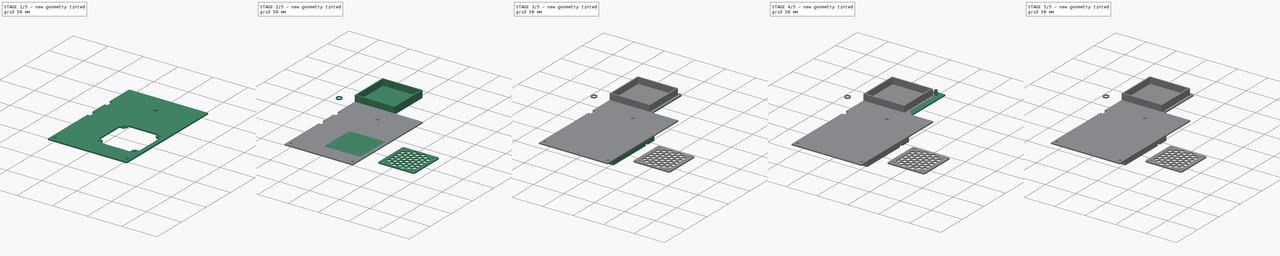
[diagram: build sequence overview — one tinted view per stage of 5, left to right]
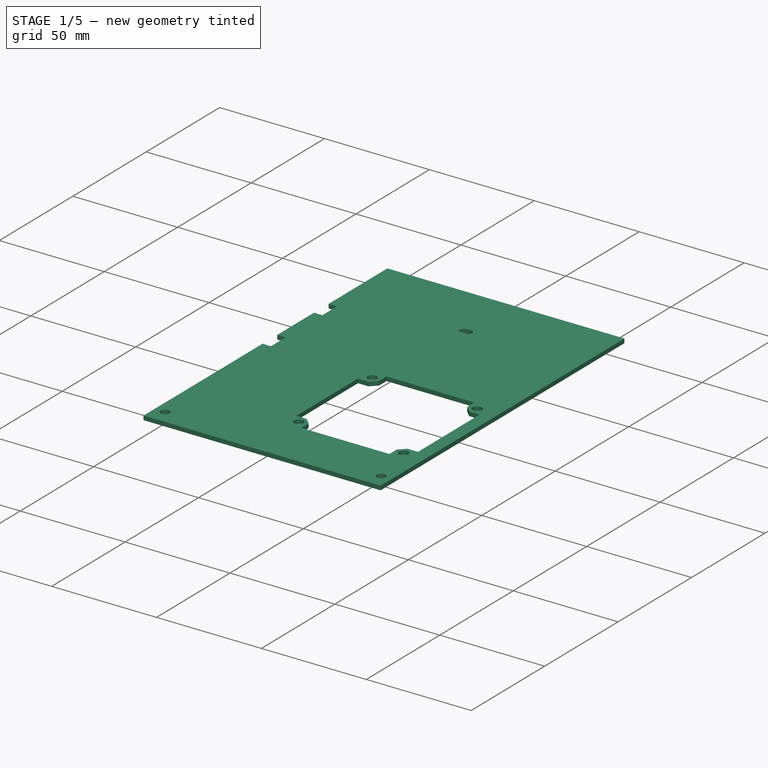
[diagram: stage 1 of 5 — iso view after this stage's code; geometry added in this stage tinted green]
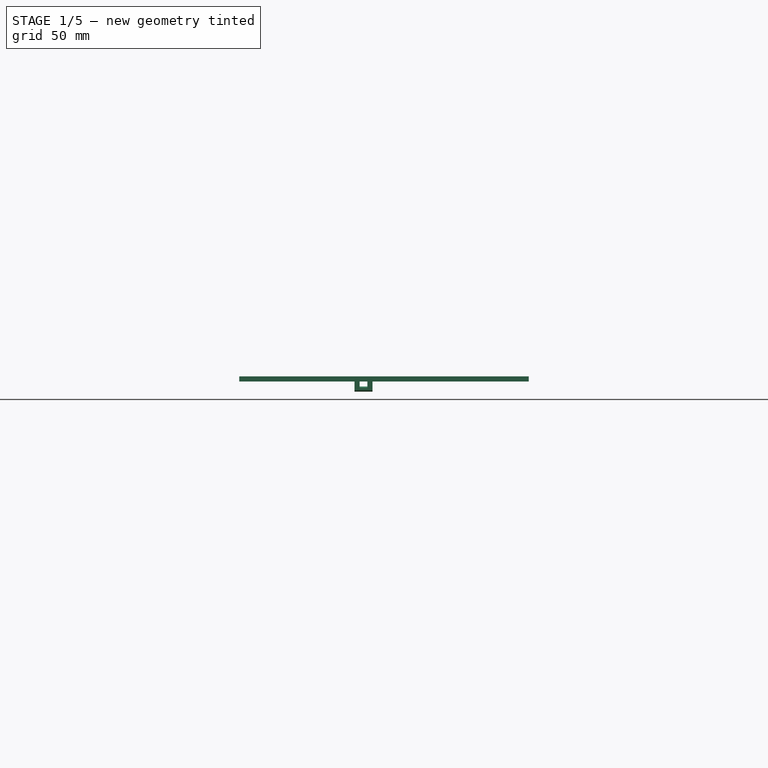
[diagram: stage 1 of 5 — front view after this stage's code; geometry added in this stage tinted green]
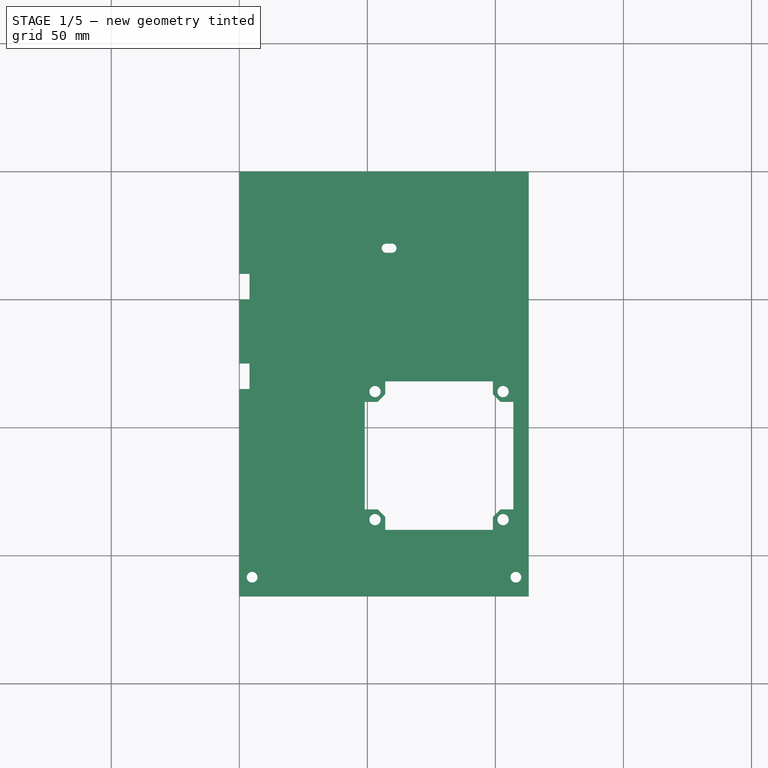
[diagram: stage 1 of 5 — top view after this stage's code; geometry added in this stage tinted green]
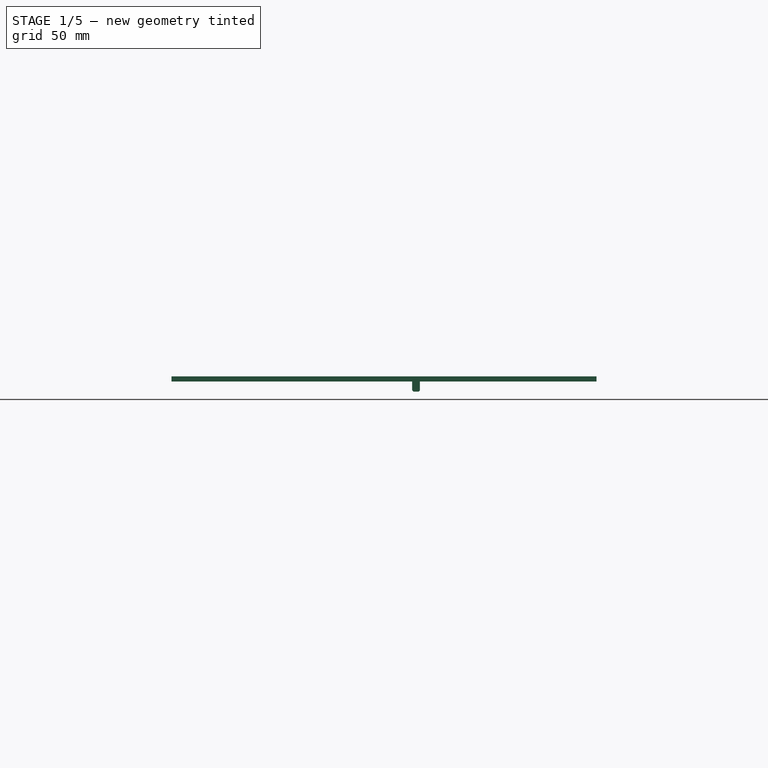
[diagram: stage 1 of 5 — right view after this stage's code; geometry added in this stage tinted green]
FCSTD DOCUMENT  (FreeCAD 0.18R14555 (Git shallow))
Label: toolbox-lit-60
License: All rights reserved
LicenseURL: http://en.wikipedia.org/wiki/All_rights_reserved
objects: Part::Feature×80, Part::Cylinder×37, Part::Box×37, Part::Cut×31, Part::MultiFuse×28, Part::Chamfer×8, Part::MultiCommon×4, Part::Fillet×2, Sketcher::SketchObject×1, PartDesign::Pad×1, PartDesign::Body×1
note: 231 computed .brp shape members not serialized (recipe doc carries the construction recipe); baked Part::Feature solids carry a one-line shape summary decoded from their .brp

FEATURE [Part::Box] Box029  label="Cube029"
  AttacherType = Attacher::AttachEngine3D
  Height = 6
  Length = 66
  Placement = pos=(45,-144,-4) rot=(0,0,1;0rad)
  Width = 66
FEATURE [Part::Feature] Fillet001001  label="lit-filter"
  shape: bbox 60 x 60 x 2 mm, 270 faces (baked)
FEATURE [Part::Box] Box030  label="Cube030"
  AttacherType = Attacher::AttachEngine3D
  Height = 4
  Length = 62
  Placement = pos=(47,-142,-2) rot=(0,0,1;0rad)
  Width = 62
FEATURE [Part::Box] Box031  label="Cube031"
  AttacherType = Attacher::AttachEngine3D
  Height = 6
  Length = 66
  Placement = pos=(45,-144,-4) rot=(0,0,1;0rad)
  Width = 66
FEATURE [Part::Cut] Cut016011
  Base = -> Fusion001002018005010002003003002006001
  Tool = -> Box031
FEATURE [Part::Cut] Cut016012
  Base = -> Box029
  Tool = -> Box030
FEATURE [Part::Cylinder] Cylinder035
  Angle = 360
  AttacherType = Attacher::AttachEngine3D
  Height = 10
  Placement = pos=(142,-136,0) rot=(0,0,1;0rad)
  Radius = 2.2
FEATURE [Part::Cylinder] Cylinder036
  Angle = 360
  AttacherType = Attacher::AttachEngine3D
  Height = 10
  Placement = pos=(192,-136,0) rot=(0,0,1;0rad)
  Radius = 2.2
FEATURE [Part::Cylinder] Cylinder037
  Angle = 360
  AttacherType = Attacher::AttachEngine3D
  Height = 10
  Placement = pos=(142,-86,0) rot=(0,0,1;0rad)
  Radius = 2.2
FEATURE [Part::Cylinder] Cylinder038
  Angle = 360
  AttacherType = Attacher::AttachEngine3D
  Height = 10
  Placement = pos=(192,-86,0) rot=(0,0,1;0rad)
  Radius = 2.2
FEATURE [Part::MultiFuse] Fusion001002018005010002003003002006001002
  Placement = pos=(-89,0,-8) rot=(0,0,1;0rad)
  Shapes = -> [Cylinder038,Cylinder037,Cylinder036,Cylinder035]
FEATURE [Part::Cut] Cut016013
  Base = -> Cut016012
  Tool = -> Fusion001002018005010002003003002006001002
FEATURE [Part::Chamfer] Chamfer001004003002
  Base = -> Cut016013
  Edges = 4 edges r=1: [Edge17,Edge18,Edge19,Edge20]
FEATURE [Part::Box] Box032  label="Cube032"
  AttacherType = Attacher::AttachEngine3D
  Height = 10
  Length = 42
  Placement = pos=(57,-140,-4) rot=(0,0,1;0rad)
  Width = 58
FEATURE [Part::Box] Box033  label="Cube033"
  AttacherType = Attacher::AttachEngine3D
  Height = 10
  Length = 58
  Placement = pos=(49,-132,-4) rot=(0,0,1;0rad)
  Width = 42
FEATURE [Part::MultiFuse] Fusion001002018005010002003003002006001003
  Shapes = -> [Box033,Box032]
FEATURE [Part::Chamfer] Chamfer001004003003
  Base = -> Fusion001002018005010002003003002006001003
  Edges = 4 edges r=3: [Edge6,Edge11,Edge41,Edge42]
FEATURE [Part::Cut] Cut016014
  Base = -> Chamfer001004003002
  Tool = -> Chamfer001004003003
FEATURE [Part::Feature] Cut016011001  label="Cut016015"
  shape: bbox 113 x 166 x 6 mm, 36 faces (baked)
FEATURE [Part::Box] Box034  label="Cube034"
  AttacherType = Attacher::AttachEngine3D
  Height = 10
  Length = 10
  Placement = pos=(34,-98,-10) rot=(0,0,1;0rad)
  Width = 10
FEATURE [Part::Box] Box035  label="Cube035"
  AttacherType = Attacher::AttachEngine3D
  Height = 10
  Length = 10
  Placement = pos=(34,-98,-10) rot=(0,0,1;0rad)
  Width = 10
FEATURE [Part::Cut] Cut016011002
  Base = -> Cut016011
  Tool = -> Box035
FEATURE [Part::MultiCommon] Common003
  Placement = pos=(-45,-112,0) rot=(0,0,1;1.5708rad)
  Shapes = -> [Box034,Cut016011001]
FEATURE [Part::Box] Box036  label="Cube036"
  AttacherType = Attacher::AttachEngine3D
  Height = 10
  Length = 10
  Placement = pos=(57,-82,-10) rot=(0,0,1;0rad)
  Width = 10
FEATURE [Part::Cut] Cut016011003
  Base = -> Cut016014
  Placement = pos=(0,0,4) rot=(0,0,1;0rad)
  Tool = -> Box036
FEATURE [Part::Box] Box037  label="Cube037"
  AttacherType = Attacher::AttachEngine3D
  Height = 4
  Length = 66
  Placement = pos=(45,-144,2) rot=(0,0,1;0rad)
  Width = 66
FEATURE [Part::Cut] Cut016011004
  Base = -> Cut016011003
  Tool = -> Box037
FEATURE [Part::Box] Box038  label="Cube038"
  AttacherType = Attacher::AttachEngine3D
  Height = 2
  Length = 10
  Placement = pos=(57,-82,0) rot=(0,0,1;0rad)
  Width = 4
FEATURE [Part::Cylinder] Cylinder039
  Angle = 360
  AttacherType = Attacher::AttachEngine3D
  Height = 2
  Placement = pos=(103,-136,0) rot=(0,0,1;0rad)
  Radius = 2.2
FEATURE [Part::Cylinder] Cylinder040
  Angle = 360
  AttacherType = Attacher::AttachEngine3D
  Height = 2
  Placement = pos=(103,-136,0) rot=(0,0,1;0rad)
  Radius = 3.2
FEATURE [Part::Cut] Cut016011006
  Base = -> Cylinder040
  Tool = -> Cylinder039
FEATURE [Part::Feature] Cut016011006001  label="Cut016011007"
  Placement = pos=(-50,0,0) rot=(0,0,1;0rad)
  shape: bbox 6.4 x 6.4 x 2 mm, 4 faces (baked)
FEATURE [Part::Feature] Cut016011006002  label="Cut016011008"
  Placement = pos=(0,50,0) rot=(0,0,1;0rad)
  shape: bbox 6.4 x 6.4 x 2 mm, 4 faces (baked)
FEATURE [Part::Feature] Cut016011006003  label="Cut016011009"
  Placement = pos=(-50,50,0) rot=(0,0,1;0rad)
  shape: bbox 6.4 x 6.4 x 2 mm, 4 faces (baked)
FEATURE [Part::MultiFuse] Fusion001002018005010002003003002006001004
  Shapes = -> [Cut016011006003,Cut016011006002,Cut016011006001,Cut016011006,Box038,Cut016011004,Common003,Cut016011002]
FEATURE [Part::Feature] Cut016011005001  label="Cut016011010"
  shape: bbox 60 x 60 x 1 mm, 266 faces (baked)
FEATURE [Part::Feature] Fusion001002018005010002003003002006001004001  label="Fusion001002018005010002003003002006001005"
  shape: bbox 113 x 166 x 6 mm, 52 faces (baked)
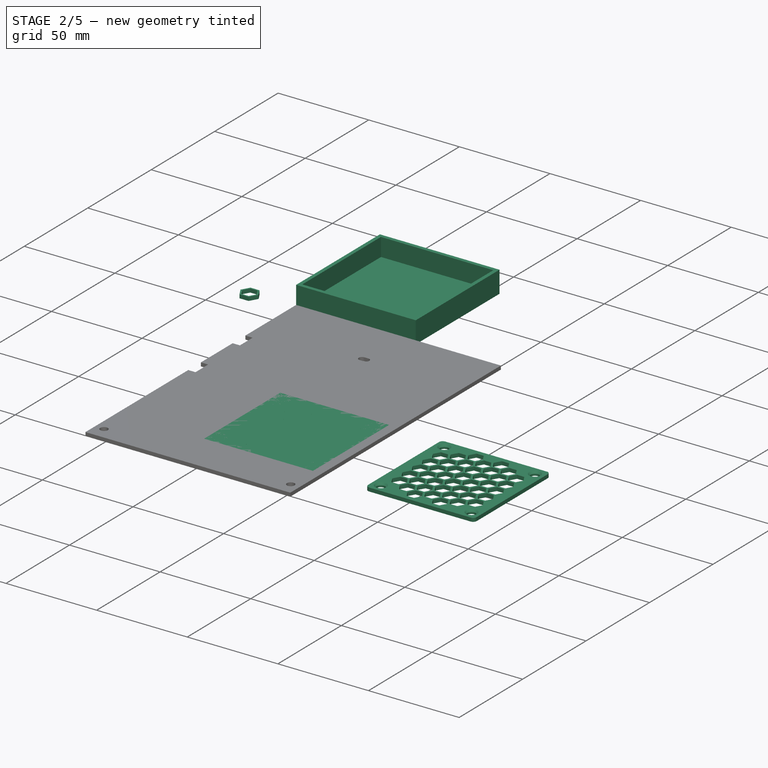
[diagram: stage 2 of 5 — iso view after this stage's code; geometry added in this stage tinted green]
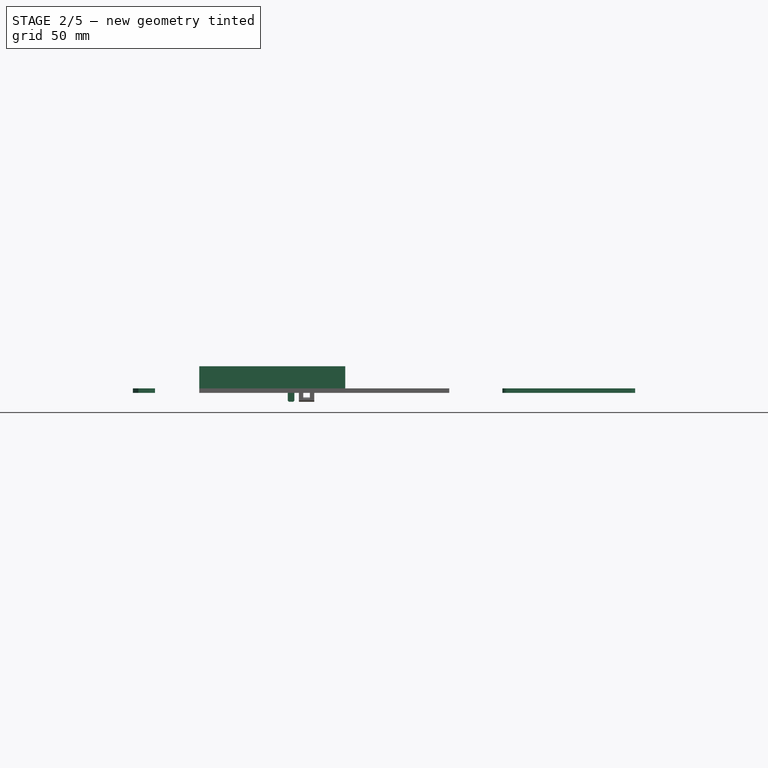
[diagram: stage 2 of 5 — front view after this stage's code; geometry added in this stage tinted green]
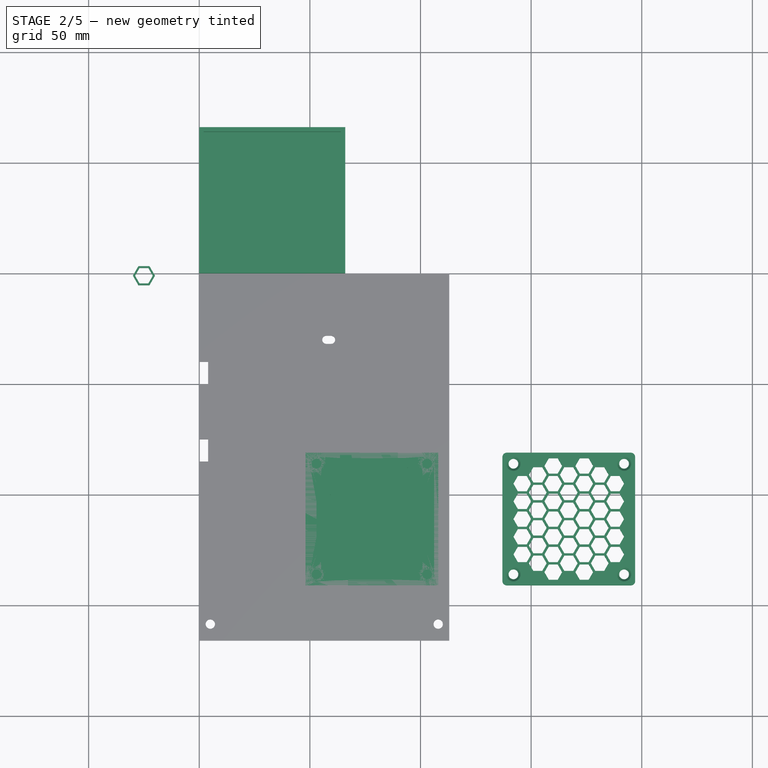
[diagram: stage 2 of 5 — top view after this stage's code; geometry added in this stage tinted green]
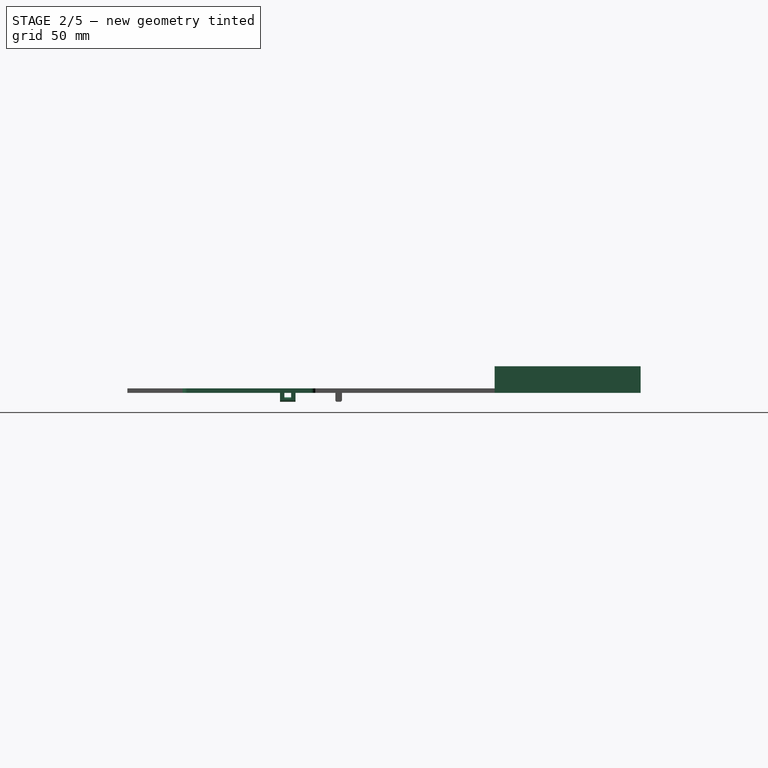
[diagram: stage 2 of 5 — right view after this stage's code; geometry added in this stage tinted green]
FEATURE [Part::Feature] Fusion001002018005010002003001  label="Fusion001002018005010002004"
  shape: bbox 113 x 166 x 2 mm, 16 faces (baked)
FEATURE [Part::Box] Box022  label="Cube022"
  AttacherType = Attacher::AttachEngine3D
  Height = 2
  Length = 60
  Placement = pos=(48,-141,0) rot=(0,0,1;0rad)
  Width = 60
FEATURE [Part::Box] Box023  label="Cube023"
  AttacherType = Attacher::AttachEngine3D
  Height = 12
  Length = 66
  Width = 66
FEATURE [Part::Box] Box024  label="Cube024"
  AttacherType = Attacher::AttachEngine3D
  Height = 10
  Length = 62
  Placement = pos=(2,2,2) rot=(0,0,1;0rad)
  Width = 62
FEATURE [Part::Cut] Cut016006
  Base = -> Box023
  Tool = -> Box024
FEATURE [Part::Feature] Body022023001  label="Body022025"
  shape: bbox 10 x 8.66 x 2 mm, 8 faces (baked)
FEATURE [Part::Feature] Body022023003001  label="Body022023004"
  Placement = pos=(-3,-14,0) rot=(0,0,1;0rad)
  shape: bbox 8 x 6.928 x 2 mm, 8 faces (baked)
FEATURE [Part::Cut] Cut016007
  Base = -> Body022023001
  Tool = -> Body022023003001
FEATURE [Part::Feature] Body022023003003  label="Body022023006"
  Placement = pos=(51,-1,0) rot=(0,0,1;0rad)
  shape: bbox 8 x 6.928 x 2 mm, 8 faces (baked)
FEATURE [Part::Feature] Body022023003004  label="Body022023007"
  Placement = pos=(51,7,0) rot=(0,0,1;0rad)
  shape: bbox 8 x 6.928 x 2 mm, 8 faces (baked)
FEATURE [Part::Feature] Body022023003005  label="Body022023008"
  Placement = pos=(44,19,0) rot=(0,0,1;0rad)
  shape: bbox 8 x 6.928 x 2 mm, 8 faces (baked)
FEATURE [Part::Feature] Body022023003006  label="Body022023009"
  Placement = pos=(44,27,0) rot=(0,0,1;0rad)
  shape: bbox 8 x 6.928 x 2 mm, 8 faces (baked)
FEATURE [Part::Feature] Body022023003007  label="Body022023010"
  Placement = pos=(44,35,0) rot=(0,0,1;0rad)
  shape: bbox 8 x 6.928 x 2 mm, 8 faces (baked)
FEATURE [Part::Feature] Body022023003008  label="Body022023011"
  Placement = pos=(44,43,0) rot=(0,0,1;0rad)
  shape: bbox 8 x 6.928 x 2 mm, 8 faces (baked)
FEATURE [Part::Feature] Body022023003010  label="Body022023013"
  Placement = pos=(58,-5,0) rot=(0,0,1;0rad)
  shape: bbox 8 x 6.928 x 2 mm, 8 faces (baked)
FEATURE [Part::Feature] Body022023003011  label="Body022023014"
  Placement = pos=(44,-5,0) rot=(0,0,1;0rad)
  shape: bbox 8 x 6.928 x 2 mm, 8 faces (baked)
FEATURE [Part::Feature] Body022023003012  label="Body022023015"
  Placement = pos=(44,3,0) rot=(0,0,1;0rad)
  shape: bbox 8 x 6.928 x 2 mm, 8 faces (baked)
FEATURE [Part::Feature] Body022023003013  label="Body022023016"
  Placement = pos=(44,11,0) rot=(0,0,1;0rad)
  shape: bbox 8 x 6.928 x 2 mm, 8 faces (baked)
FEATURE [Part::Feature] Body022023003014  label="Body022023017"
  Placement = pos=(51,15,0) rot=(0,0,1;0rad)
  shape: bbox 8 x 6.928 x 2 mm, 8 faces (baked)
FEATURE [Part::Feature] Body022023003015  label="Body022023018"
  Placement = pos=(51,23,0) rot=(0,0,1;0rad)
  shape: bbox 8 x 6.928 x 2 mm, 8 faces (baked)
FEATURE [Part::Feature] Body022023003016  label="Body022023019"
  Placement = pos=(51,31,0) rot=(0,0,1;0rad)
  shape: bbox 8 x 6.928 x 2 mm, 8 faces (baked)
FEATURE [Part::Feature] Body022023003017  label="Body022023020"
  Placement = pos=(51,39,0) rot=(0,0,1;0rad)
  shape: bbox 8 x 6.928 x 2 mm, 8 faces (baked)
FEATURE [Part::Feature] Body022023003018  label="Body022023021"
  Placement = pos=(37,39,0) rot=(0,0,1;0rad)
  shape: bbox 8 x 6.928 x 2 mm, 8 faces (baked)
FEATURE [Part::Feature] Body022023003019  label="Body022023022"
  Placement = pos=(37,31,0) rot=(0,0,1;0rad)
  shape: bbox 8 x 6.928 x 2 mm, 8 faces (baked)
FEATURE [Part::Feature] Body022023003020  label="Body022023023"
  Placement = pos=(37,23,0) rot=(0,0,1;0rad)
  shape: bbox 8 x 6.928 x 2 mm, 8 faces (baked)
FEATURE [Part::Feature] Body022023003021  label="Body022023024"
  Placement = pos=(37,15,0) rot=(0,0,1;0rad)
  shape: bbox 8 x 6.928 x 2 mm, 8 faces (baked)
FEATURE [Part::Feature] Body022023003022  label="Body022023025"
  Placement = pos=(37,7,0) rot=(0,0,1;0rad)
  shape: bbox 8 x 6.928 x 2 mm, 8 faces (baked)
FEATURE [Part::Feature] Body022023003023  label="Body022023026"
  Placement = pos=(37,-1,0) rot=(0,0,1;0rad)
  shape: bbox 8 x 6.928 x 2 mm, 8 faces (baked)
FEATURE [Part::Feature] Body022023003024  label="Body022023027"
  Placement = pos=(30,35,0) rot=(0,0,1;0rad)
  shape: bbox 8 x 6.928 x 2 mm, 8 faces (baked)
FEATURE [Part::Feature] Body022023003025  label="Body022023028"
  Placement = pos=(30,27,0) rot=(0,0,1;0rad)
  shape: bbox 8 x 6.928 x 2 mm, 8 faces (baked)
FEATURE [Part::Feature] Body022023003026  label="Body022023029"
  Placement = pos=(30,19,0) rot=(0,0,1;0rad)
  shape: bbox 8 x 6.928 x 2 mm, 8 faces (baked)
FEATURE [Part::Feature] Body022023003027  label="Body022023030"
  Placement = pos=(30,11,0) rot=(0,0,1;0rad)
  shape: bbox 8 x 6.928 x 2 mm, 8 faces (baked)
FEATURE [Part::Feature] Body022023003028  label="Body022023031"
  Placement = pos=(30,3,0) rot=(0,0,1;0rad)
  shape: bbox 8 x 6.928 x 2 mm, 8 faces (baked)
FEATURE [Part::MultiFuse] Fusion001002018005010002003003
  Shapes = -> [Body022023003008,Body022023003007,Body022023003006,Body022023003005,Body022023003013,Body022023003012,Body022023003011]
FEATURE [Part::Feature] Fusion001002018005010002003003001  label="Fusion001002018005010002003004"
  Placement = pos=(14,0,0) rot=(0,0,1;0rad)
  shape: bbox 8 x 54.93 x 2 mm, 56 faces, 7 solids (baked)
FEATURE [Part::MultiFuse] Fusion001002018005010002003003002
  Shapes = -> [Body022023003018,Body022023003019,Body022023003020,Body022023003021,Body022023003022,Body022023003023]
FEATURE [Part::Feature] Fusion001002018005010002003003002001  label="Fusion001002018005010002003003003"
  Placement = pos=(28,0,0) rot=(0,0,1;0rad)
  shape: bbox 8 x 46.93 x 2 mm, 48 faces, 6 solids (baked)
FEATURE [Part::Feature] Body022023003024001  label="Body022023036"
  Placement = pos=(30,35,0) rot=(0,0,1;0rad)
  shape: bbox 8 x 6.928 x 2 mm, 8 faces (baked)
FEATURE [Part::Feature] Body022023003025001  label="Body022023037"
  Placement = pos=(30,27,0) rot=(0,0,1;0rad)
  shape: bbox 8 x 6.928 x 2 mm, 8 faces (baked)
FEATURE [Part::Feature] Body022023003026001  label="Body022023038"
  Placement = pos=(30,19,0) rot=(0,0,1;0rad)
  shape: bbox 8 x 6.928 x 2 mm, 8 faces (baked)
FEATURE [Part::Feature] Body022023003027001  label="Body022023039"
  Placement = pos=(30,11,0) rot=(0,0,1;0rad)
  shape: bbox 8 x 6.928 x 2 mm, 8 faces (baked)
FEATURE [Part::Feature] Body022023003028001  label="Body022023040"
  Placement = pos=(30,3,0) rot=(0,0,1;0rad)
  shape: bbox 8 x 6.928 x 2 mm, 8 faces (baked)
FEATURE [Part::MultiFuse] Fusion001002018005010002003003002002
  Placement = pos=(42,0,0) rot=(0,0,1;0rad)
  Shapes = -> [Body022023003024001,Body022023003025001,Body022023003026001,Body022023003027001,Body022023003028001]
FEATURE [Part::MultiFuse] Fusion001002018005010002003003002003
  Placement = pos=(48,-141,0) rot=(0,0,1;0rad)
  Shapes = -> [Fusion001002018005010002003003002002,Fusion001002018005010002003003002001,Fusion001002018005010002003003002,Fusion001002018005010002003003001,Fusion001002018005010002003003,Body022023003028,Body022023003027,Body022023003015,Body022023003010,Body022023003017,Body022023003025,Body022023003014,Body022023003024,Body022023003016,Body022023003026,Body022023003003,Body022023003004]
FEATURE [Part::Cylinder] Cylinder031
  Angle = 360
  AttacherType = Attacher::AttachEngine3D
  Height = 10
  Placement = pos=(0,50,0) rot=(0,0,1;0rad)
  Radius = 2.2
FEATURE [Part::Cylinder] Cylinder032
  Angle = 360
  AttacherType = Attacher::AttachEngine3D
  Height = 10
  Placement = pos=(50,50,0) rot=(0,0,1;0rad)
  Radius = 2.2
FEATURE [Part::Cylinder] Cylinder033
  Angle = 360
  AttacherType = Attacher::AttachEngine3D
  Height = 10
  Radius = 2.2
FEATURE [Part::Cylinder] Cylinder034
  Angle = 360
  AttacherType = Attacher::AttachEngine3D
  Height = 10
  Placement = pos=(50,0,0) rot=(0,0,1;0rad)
  Radius = 2.2
FEATURE [Part::MultiFuse] Fusion001002018005010002003003002004
  Placement = pos=(53,-136,0) rot=(0,0,1;0rad)
  Shapes = -> [Cylinder031,Cylinder034,Cylinder033,Cylinder032]
FEATURE [Part::MultiFuse] Fusion001002018005010002003003002005
  Shapes = -> [Fusion001002018005010002003003002004,Fusion001002018005010002003003002003]
FEATURE [Part::Cut] Cut016008
  Base = -> Fusion001002018005010002003001
  Tool = -> Fusion001002018005010002003003002005
FEATURE [Part::Box] Box025  label="Cube025"
  AttacherType = Attacher::AttachEngine3D
  Height = 2
  Length = 4
  Placement = pos=(0,-85,0) rot=(0,0,1;0rad)
  Width = 10
FEATURE [Part::Cut] Cut016009
  Base = -> Cut016008
  Tool = -> Box025
FEATURE [Part::Chamfer] Chamfer001004002
  Base = -> Cut016009
  Edges = 4 edges r=1: [Edge304,Edge407,Edge504,Edge553]
FEATURE [Part::Box] Box026  label="Cube026"
  AttacherType = Attacher::AttachEngine3D
  Height = 4
  Length = 3
  Width = 7
FEATURE [Part::Box] Box027  label="Cube027"
  AttacherType = Attacher::AttachEngine3D
  Height = 2
  Length = 3
  Placement = pos=(0,2,2) rot=(0,0,1;0rad)
  Width = 3
FEATURE [Part::Cut] Cut016010
  Base = -> Box026
  Tool = -> Box027
FEATURE [Part::Chamfer] Chamfer001004003
  Base = -> Cut016010
  Edges = 4 edges r=0.5: [Edge3,Edge7,Edge15,Edge22]
FEATURE [Part::Feature] Chamfer001004003001  label="Chamfer001004004"
  Placement = pos=(40,-97,-4) rot=(0,0,1;0rad)
  shape: bbox 3 x 7 x 4 mm, 14 faces (baked)
FEATURE [Part::MultiFuse] Fusion001002018005010002003003002006
  Shapes = -> [Chamfer001004002,Chamfer001004003001]
FEATURE [Part::Feature] Fusion001002018005010002003003002006001  label="Fusion001002018005010002003003002007"
  shape: bbox 113 x 166 x 6 mm, 292 faces (baked)
FEATURE [Part::Feature] Fusion001002018005010002003003002006001001  label="Fusion001002018005010002003003002008"
  shape: bbox 113 x 166 x 6 mm, 292 faces (baked)
FEATURE [Part::Box] Box028  label="Cube028"
  AttacherType = Attacher::AttachEngine3D
  Height = 2
  Length = 60
  Placement = pos=(48,-141,0) rot=(0,0,1;0rad)
  Width = 60
FEATURE [Part::MultiCommon] Common002
  Placement = pos=(89,0,0) rot=(0,0,1;0rad)
  Shapes = -> [Fusion001002018005010002003003002006001001,Box028]
FEATURE [Part::Fillet] Fillet001
  Base = -> Common002
  Edges = 4 edges r=2: [Edge261,Edge262,Edge265,Edge266]
FEATURE [Part::Box] Box039  label="Cube039"
  AttacherType = Attacher::AttachEngine3D
  Height = 1
  Length = 60
  Placement = pos=(137,-141,0) rot=(0,0,1;0rad)
  Width = 60
FEATURE [Part::Cut] Cut016011005
  Base = -> Fillet001001
  Tool = -> Box039
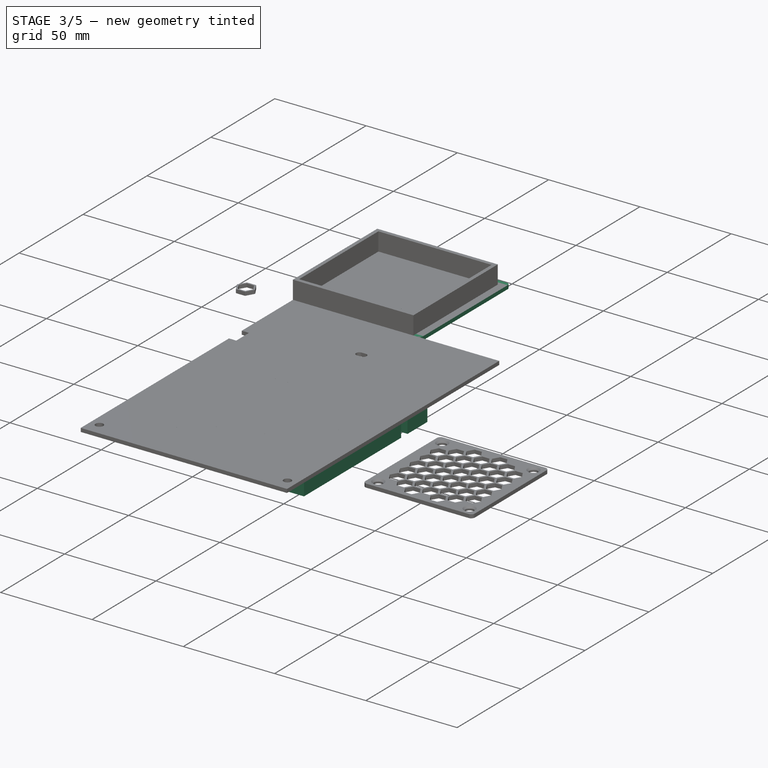
[diagram: stage 3 of 5 — iso view after this stage's code; geometry added in this stage tinted green]
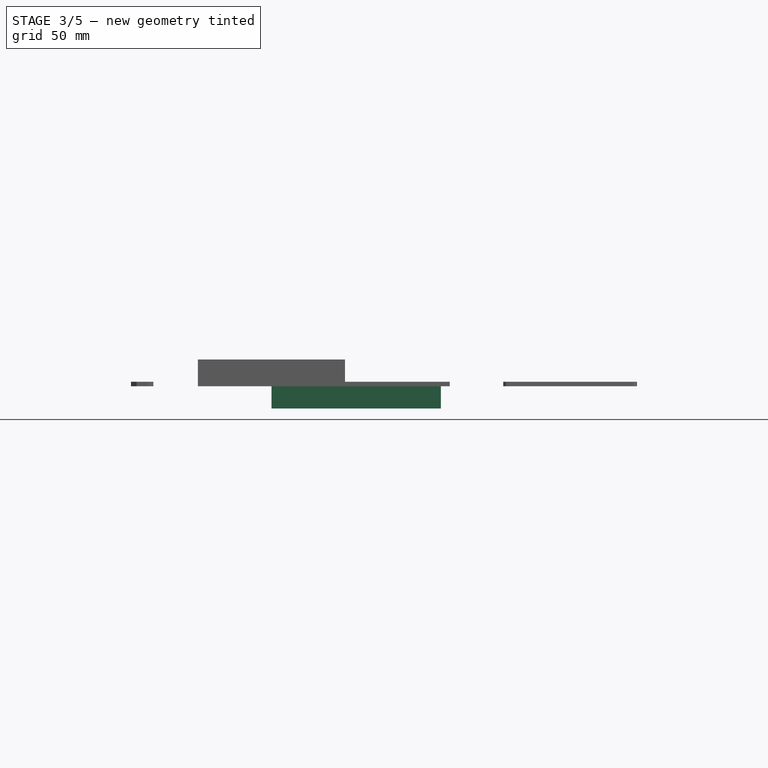
[diagram: stage 3 of 5 — front view after this stage's code; geometry added in this stage tinted green]
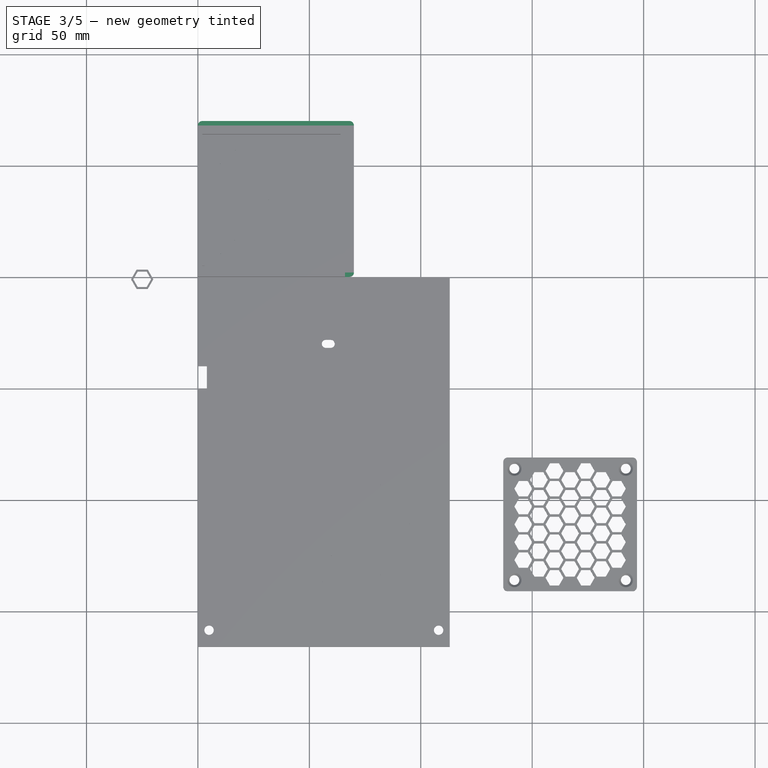
[diagram: stage 3 of 5 — top view after this stage's code; geometry added in this stage tinted green]
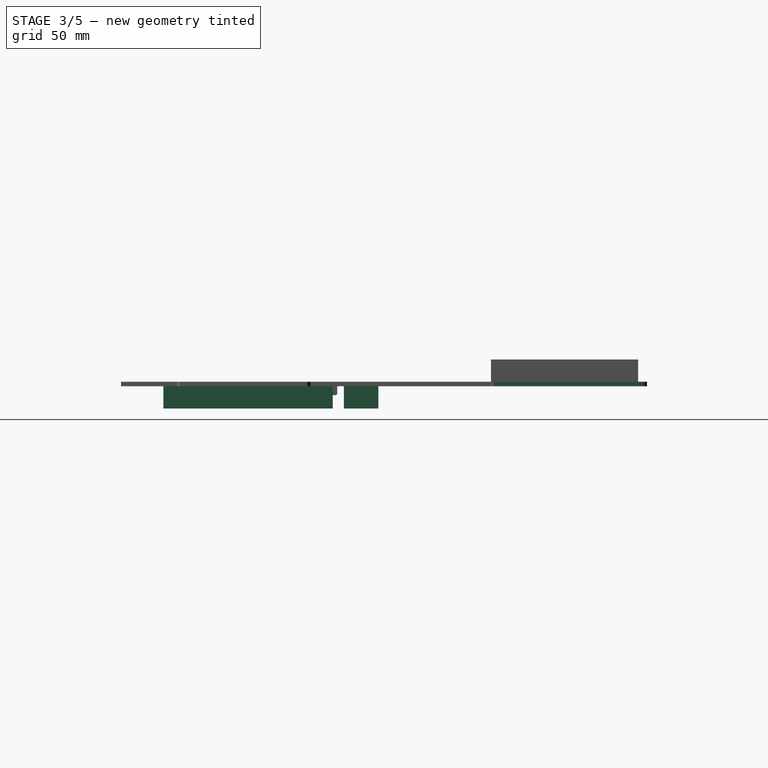
[diagram: stage 3 of 5 — right view after this stage's code; geometry added in this stage tinted green]
FEATURE [Part::Feature] Fusion001002018001  label="Fusion001002019"
  shape: bbox 113 x 166 x 12 mm, 65 faces (baked)
FEATURE [Part::Cylinder] Cylinder017
  Angle = 360
  AttacherType = Attacher::AttachEngine3D
  Height = 2
  Placement = pos=(41,-79,-10) rot=(0,0,1;0rad)
  Radius = 2.2
FEATURE [Part::Cylinder] Cylinder018
  Angle = 360
  AttacherType = Attacher::AttachEngine3D
  Height = 2
  Placement = pos=(101,-79,-10) rot=(0,0,1;0rad)
  Radius = 2.2
FEATURE [Part::Cylinder] Cylinder019
  Angle = 360
  AttacherType = Attacher::AttachEngine3D
  Height = 2
  Placement = pos=(101,-139,-10) rot=(0,0,1;0rad)
  Radius = 2.2
FEATURE [Part::Cylinder] Cylinder020
  Angle = 360
  AttacherType = Attacher::AttachEngine3D
  Height = 2
  Placement = pos=(41,-139,-10) rot=(0,0,1;0rad)
  Radius = 2.2
FEATURE [Part::Cylinder] Cylinder021
  Angle = 360
  AttacherType = Attacher::AttachEngine3D
  Height = 2
  Placement = pos=(40.25,-139.75,-10) rot=(0,0,1;0rad)
  Radius = 2.2
FEATURE [Part::Cylinder] Cylinder022
  Angle = 360
  AttacherType = Attacher::AttachEngine3D
  Height = 2
  Placement = pos=(101.75,-139.75,-10) rot=(0,0,1;0rad)
  Radius = 2.2
FEATURE [Part::Cylinder] Cylinder023
  Angle = 360
  AttacherType = Attacher::AttachEngine3D
  Height = 2
  Placement = pos=(101.75,-78.25,-10) rot=(0,0,1;0rad)
  Radius = 2.2
FEATURE [Part::Cylinder] Cylinder024
  Angle = 360
  AttacherType = Attacher::AttachEngine3D
  Height = 2
  Placement = pos=(40.25,-78.25,-10) rot=(0,0,1;0rad)
  Radius = 2.2
FEATURE [Part::MultiFuse] Fusion001002018002
  Shapes = -> [Cylinder020,Cylinder019,Cylinder018,Cylinder017,Fusion001002018001]
FEATURE [Part::MultiFuse] Fusion001002018003
  Shapes = -> [Cylinder021,Cylinder024,Cylinder022,Cylinder023]
FEATURE [Part::Box] Box  label="Cube"
  AttacherType = Attacher::AttachEngine3D
  Height = 2
  Length = 70
  Width = 70
FEATURE [Part::Fillet] Fillet
  Base = -> Box
  Edges = 4 edges r=2: [Edge1,Edge3,Edge5,Edge7]
FEATURE [Part::Feature] Body022002  label="Body027"
  Placement = pos=(12,61,0) rot=(0,0,1;0rad)
  shape: bbox 8 x 6.928 x 2 mm, 8 faces (baked)
FEATURE [Part::Feature] Body022003  label="Body028"
  Placement = pos=(19,57,0) rot=(0,0,1;0rad)
  shape: bbox 8 x 6.928 x 2 mm, 8 faces (baked)
FEATURE [Part::Feature] Body022004  label="Body029"
  Placement = pos=(26,61,0) rot=(0,0,1;0rad)
  shape: bbox 8 x 6.928 x 2 mm, 8 faces (baked)
FEATURE [Part::Feature] Body022005  label="Body030"
  Placement = pos=(33,57,0) rot=(0,0,1;0rad)
  shape: bbox 8 x 6.928 x 2 mm, 8 faces (baked)
FEATURE [Part::Feature] Body022006  label="Body031"
  Placement = pos=(40,61,0) rot=(0,0,1;0rad)
  shape: bbox 8 x 6.928 x 2 mm, 8 faces (baked)
FEATURE [Part::Feature] Body022007  label="Body032"
  Placement = pos=(47,57,0) rot=(0,0,1;0rad)
  shape: bbox 8 x 6.928 x 2 mm, 8 faces (baked)
FEATURE [Part::Feature] Body022008  label="Body033"
  Placement = pos=(54,61,0) rot=(0,0,1;0rad)
  shape: bbox 8 x 6.928 x 2 mm, 8 faces (baked)
FEATURE [Part::Feature] Body022009  label="Body034"
  Placement = pos=(61,57,0) rot=(0,0,1;0rad)
  shape: bbox 8 x 6.928 x 2 mm, 8 faces (baked)
FEATURE [Part::Feature] Body022010  label="Body035"
  Placement = pos=(5,57,0) rot=(0,0,1;0rad)
  shape: bbox 8 x 6.928 x 2 mm, 8 faces (baked)
FEATURE [Part::Feature] Body022013  label="Body038"
  Placement = pos=(14,13,0) rot=(0,0,1;0rad)
  shape: bbox 8 x 6.928 x 2 mm, 8 faces (baked)
FEATURE [Part::MultiFuse] Fusion001002018005
  Placement = pos=(2,0,0) rot=(0,0,1;0rad)
  Shapes = -> [Body022010,Body022009,Body022002,Body022008,Body022005,Body022004,Body022003,Body022006,Body022007]
FEATURE [Part::Feature] Fusion001002018005001  label="Fusion001002018006"
  Placement = pos=(2,0,0) rot=(0,0,1;0rad)
  shape: bbox 64 x 10.93 x 2 mm, 72 faces, 9 solids (baked)
FEATURE [Part::Feature] Fusion001002018005002  label="Fusion001002018007"
  Placement = pos=(2,-8,0) rot=(0,0,1;0rad)
  shape: bbox 64 x 10.93 x 2 mm, 72 faces, 9 solids (baked)
FEATURE [Part::Feature] Fusion001002018005003  label="Fusion001002018008"
  Placement = pos=(2,-16,0) rot=(0,0,1;0rad)
  shape: bbox 64 x 10.93 x 2 mm, 72 faces, 9 solids (baked)
FEATURE [Part::Feature] Fusion001002018005004  label="Fusion001002018009"
  Placement = pos=(2,-24,0) rot=(0,0,1;0rad)
  shape: bbox 64 x 10.93 x 2 mm, 72 faces, 9 solids (baked)
FEATURE [Part::Feature] Fusion001002018005005  label="Fusion001002018010"
  Placement = pos=(2,-32,0) rot=(0,0,1;0rad)
  shape: bbox 64 x 10.93 x 2 mm, 72 faces, 9 solids (baked)
FEATURE [Part::Feature] Fusion001002018005006  label="Fusion001002018011"
  Placement = pos=(2,-40,0) rot=(0,0,1;0rad)
  shape: bbox 64 x 10.93 x 2 mm, 72 faces, 9 solids (baked)
FEATURE [Part::Feature] Body022014  label="Body039"
  Placement = pos=(28,13,0) rot=(0,0,1;0rad)
  shape: bbox 8 x 6.928 x 2 mm, 8 faces (baked)
FEATURE [Part::Feature] Body022015  label="Body040"
  Placement = pos=(42,13,0) rot=(0,0,1;0rad)
  shape: bbox 8 x 6.928 x 2 mm, 8 faces (baked)
FEATURE [Part::Feature] Body022016  label="Body041"
  Placement = pos=(56,13,0) rot=(0,0,1;0rad)
  shape: bbox 8 x 6.928 x 2 mm, 8 faces (baked)
FEATURE [Part::MultiFuse] Fusion001002018005007
  Placement = pos=(0,-3,0) rot=(0,0,1;0rad)
  Shapes = -> [Body022013,Fusion001002018005001,Fusion001002018005004,Fusion001002018005002,Fusion001002018005003,Fusion001002018005,Body022014,Fusion001002018005005,Body022015,Body022016,Fusion001002018005006]
FEATURE [Part::Feature] Body022017  label="Body042"
  Placement = pos=(21,6,0) rot=(0,0,1;0rad)
  shape: bbox 8 x 6.928 x 2 mm, 8 faces (baked)
FEATURE [Part::Feature] Body022018  label="Body043"
  Placement = pos=(35,6,0) rot=(0,0,1;0rad)
  shape: bbox 8 x 6.928 x 2 mm, 8 faces (baked)
FEATURE [Part::Feature] Body022019  label="Body044"
  Placement = pos=(49,6,0) rot=(0,0,1;0rad)
  shape: bbox 8 x 6.928 x 2 mm, 8 faces (baked)
FEATURE [Part::Feature] Body022020  label="Body045"
  Placement = pos=(49,62,0) rot=(0,0,1;0rad)
  shape: bbox 8 x 6.928 x 2 mm, 8 faces (baked)
FEATURE [Part::Feature] Body022021  label="Body046"
  Placement = pos=(35,62,0) rot=(0,0,1;0rad)
  shape: bbox 8 x 6.928 x 2 mm, 8 faces (baked)
FEATURE [Part::Feature] Body022022  label="Body047"
  Placement = pos=(21,62,0) rot=(0,0,1;0rad)
  shape: bbox 8 x 6.928 x 2 mm, 8 faces (baked)
FEATURE [Part::MultiFuse] Fusion001002018005008
  Placement = pos=(0,1,0) rot=(0,0,1;0rad)
  Shapes = -> [Body022022,Body022020,Body022019,Body022021,Body022017,Body022018,Fusion001002018005007]
FEATURE [Part::Cut] Cut016
  Base = -> Fusion001002018002
  Tool = -> Fusion001002018003
FEATURE [Part::Cylinder] Cylinder029
  Angle = 360
  AttacherType = Attacher::AttachEngine3D
  Height = 10
  Placement = pos=(38,-66,0) rot=(0,0,1;0rad)
  Radius = 1.5
FEATURE [Part::Cylinder] Cylinder030
  Angle = 360
  AttacherType = Attacher::AttachEngine3D
  Height = 10
  Placement = pos=(38,-50,0) rot=(0,0,1;0rad)
  Radius = 1.5
FEATURE [Part::MultiFuse] Fusion001002018005009
  Placement = pos=(37,0,0) rot=(0,0,1;0rad)
  Shapes = -> [Cylinder030,Cylinder029]
FEATURE [Part::Cut] Cut016004
  Base = -> Cut016
  Tool = -> Fusion001002018005009
FEATURE [Part::Box] Box018  label="Cube018"
  AttacherType = Attacher::AttachEngine3D
  Height = 2
  Length = 10
  Placement = pos=(32,-68,0) rot=(0,0,1;0rad)
  Width = 20
FEATURE [Part::MultiFuse] Fusion001002018005010
  Shapes = -> [Box018,Cut016004]
FEATURE [Part::Feature] Fusion001002018005010001  label="Fusion001002018005011"
  shape: bbox 113 x 166 x 12 mm, 65 faces (baked)
FEATURE [Part::Chamfer] Chamfer001004
  Base = -> Fusion001002018005010001
  Edges = 12 edges r=1: [Edge190,Edge191,Edge192,Edge194,Edge195,Edge196,Edge198,Edge199,Edge200,Edge202,Edge203,Edge204]
FEATURE [Part::Feature] Chamfer001004001  label="Chamfer001005"
  shape: bbox 113 x 166 x 12 mm, 77 faces (baked)
FEATURE [Part::Box] Box019  label="Cube019"
  AttacherType = Attacher::AttachEngine3D
  Height = 10
  Length = 114
  Placement = pos=(0,-166,-10) rot=(0,0,1;0rad)
  Width = 128
FEATURE [Part::Box] Box020  label="Cube020"
  AttacherType = Attacher::AttachEngine3D
  Height = 2
  Length = 80
  Placement = pos=(32,-148,0) rot=(0,0,1;0rad)
  Width = 107
FEATURE [Part::Cut] Cut016005
  Base = -> Chamfer001004001
  Tool = -> Box019
FEATURE [Part::MultiFuse] Fusion001002018005010002
  Shapes = -> [Box020,Cut016005]
FEATURE [Part::Feature] Fusion001002018005010002001  label="Fusion001002018005010003"
  shape: bbox 113 x 166 x 2 mm, 16 faces (baked)
FEATURE [Part::Feature] Fusion001002018005010002002  label="Fusion001002018005010004"
  shape: bbox 113 x 166 x 2 mm, 16 faces (baked)
FEATURE [Part::Box] Box021  label="Cube021"
  AttacherType = Attacher::AttachEngine3D
  Height = 10
  Length = 10
  Placement = pos=(60,-35,0) rot=(0,0,1;0rad)
  Width = 10
FEATURE [Part::MultiCommon] Common001
  Placement = pos=(-2,0,0) rot=(0,0,1;0rad)
  Shapes = -> [Box021,Fusion001002018005010002002]
FEATURE [Part::MultiFuse] Fusion001002018005010002003
  Shapes = -> [Common001,Fusion001002018005010002001]
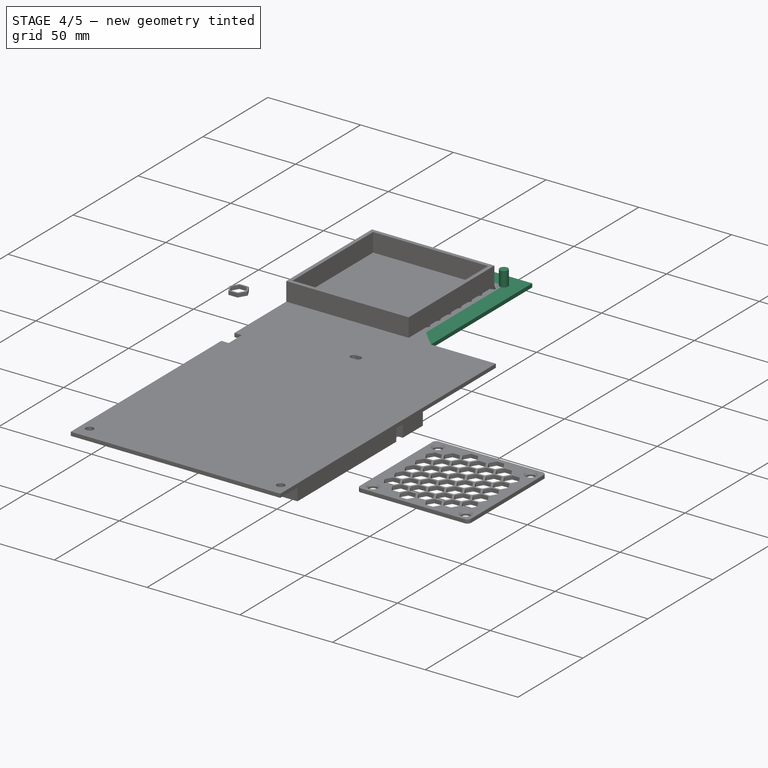
[diagram: stage 4 of 5 — iso view after this stage's code; geometry added in this stage tinted green]
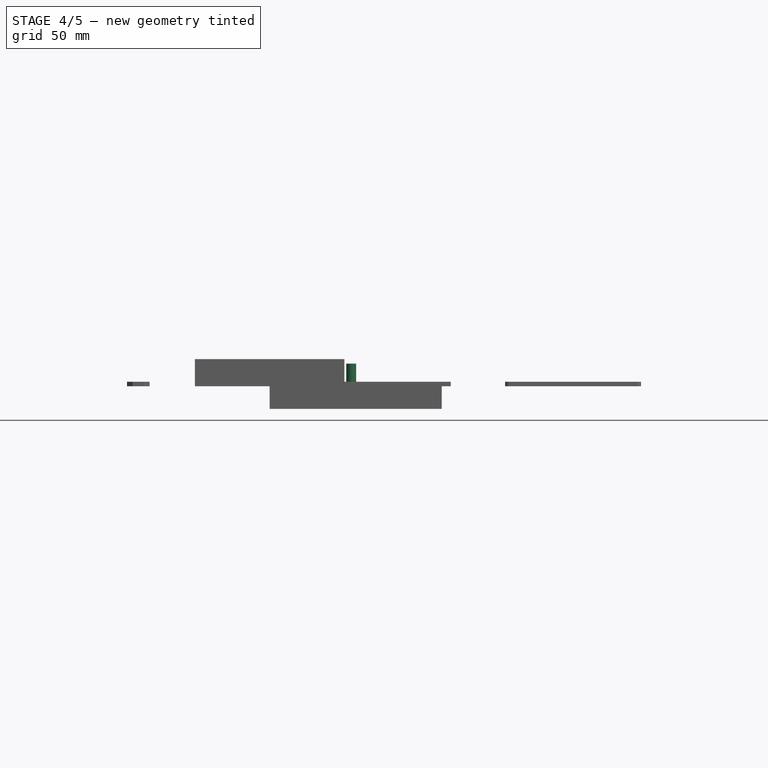
[diagram: stage 4 of 5 — front view after this stage's code; geometry added in this stage tinted green]
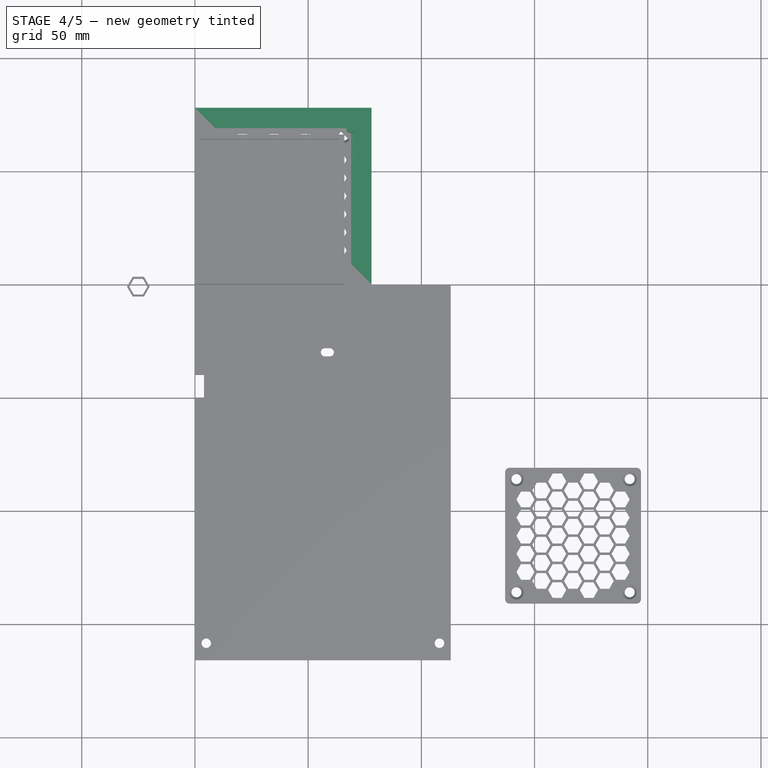
[diagram: stage 4 of 5 — top view after this stage's code; geometry added in this stage tinted green]
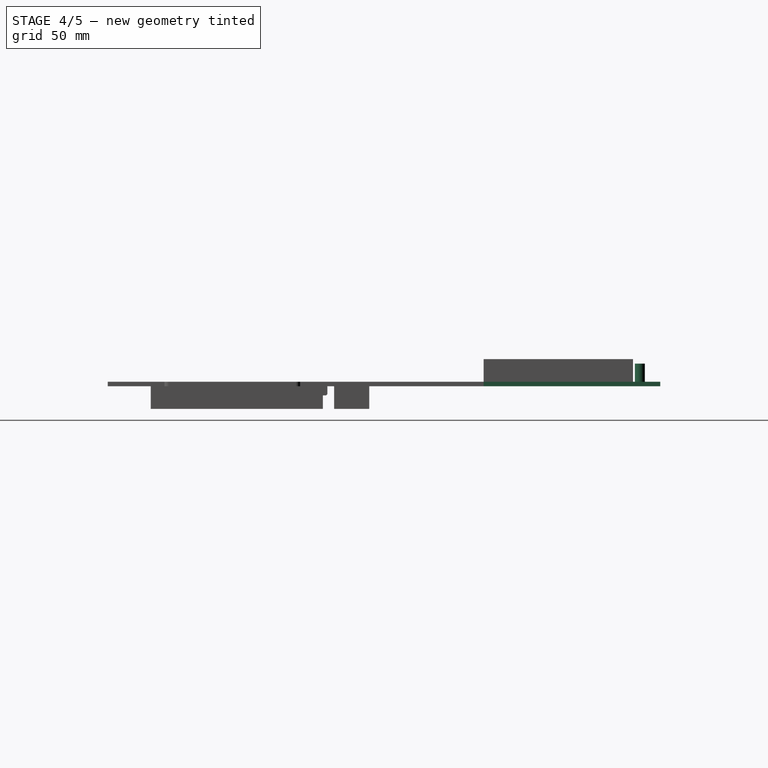
[diagram: stage 4 of 5 — right view after this stage's code; geometry added in this stage tinted green]
FEATURE [Sketcher::SketchObject] Sketch001
  MapMode = 5
  Support = -> [XY_Plane001]
  sketch-geometry (8):
    g0: LineSegment StartX=0 StartY=0 StartZ=0 EndX=113 EndY=0 EndZ=0
    g1: LineSegment StartX=113 StartY=0 StartZ=0 EndX=113 EndY=-166 EndZ=0
    g2: LineSegment StartX=113 StartY=-166 StartZ=0 EndX=0 EndY=-166 EndZ=0
    g3: LineSegment StartX=0 StartY=-166 StartZ=0 EndX=0 EndY=-50 EndZ=0
    g4: LineSegment StartX=0 StartY=-50 StartZ=0 EndX=4 EndY=-50 EndZ=0
    g5: LineSegment StartX=4 StartY=-50 StartZ=0 EndX=4 EndY=-40 EndZ=0
    g6: LineSegment StartX=4 StartY=-40 StartZ=0 EndX=0 EndY=-40 EndZ=0
    g7: LineSegment StartX=0 StartY=-40 StartZ=0 EndX=0 EndY=0 EndZ=0
  constraints (18):
    c: Coincident(g-1,g0)
    c: PointOnObject(g0,g-1)
    c: Coincident(g0,g1)
    c: Vertical(g1)
    c: Coincident(g1,g2)
    c: Horizontal(g2)
    c: Coincident(g2,g3)
    c: PointOnObject(g3,g-2)
    c: Vertical(g3)
    c: Coincident(g3,g4)
    c: Horizontal(g4)
    c: Coincident(g4,g5)
    c: Vertical(g5)
    c: Coincident(g5,g6)
    c: PointOnObject(g6,g-2)
    c: Horizontal(g6)
    c: Coincident(g6,g7)
    c: Coincident(g7,g0)
FEATURE [PartDesign::Pad] Pad001
  Length = 2
  Length2 = 100
  Profile = -> Sketch001
  Type = 0
FEATURE [PartDesign::Body] Body019
  Group = -> [Sketch001,Pad001]
  Origin = -> Origin001
  Tip = -> Pad001
FEATURE [Part::Cylinder] Cylinder005
  Angle = 360
  AttacherType = Attacher::AttachEngine3D
  Height = 10
  Placement = pos=(5,-158.5,0) rot=(0,0,1;0rad)
  Radius = 2.1
FEATURE [Part::Cylinder] Cylinder006
  Angle = 360
  AttacherType = Attacher::AttachEngine3D
  Height = 10
  Placement = pos=(108,-158.5,0) rot=(0,0,1;0rad)
  Radius = 2.1
FEATURE [Part::Cylinder] Cylinder007
  Angle = 360
  AttacherType = Attacher::AttachEngine3D
  Height = 10
  Placement = pos=(59.5,-30,0) rot=(0,0,1;0rad)
  Radius = 1.8
FEATURE [Part::Cylinder] Cylinder008
  Angle = 360
  AttacherType = Attacher::AttachEngine3D
  Height = 10
  Placement = pos=(57.4,-30,0) rot=(0,0,1;0rad)
  Radius = 1.8
FEATURE [Part::Cylinder] Cylinder009
  Angle = 360
  AttacherType = Attacher::AttachEngine3D
  Height = 10
  Placement = pos=(61.6,-30,0) rot=(0,0,1;0rad)
  Radius = 1.8
FEATURE [Part::Box] Box002  label="Cube002"
  AttacherType = Attacher::AttachEngine3D
  Height = 10
  Length = 4.2
  Placement = pos=(57.4,-31.8,0) rot=(0,0,1;0rad)
  Width = 3.6
FEATURE [Part::MultiFuse] Fusion001002008
  Shapes = -> [Box002,Cylinder008,Cylinder009,Cylinder007,Cylinder006,Cylinder005]
FEATURE [Part::Cut] Cut003  label="lit"
  Base = -> Body019
  Tool = -> Fusion001002008
FEATURE [Part::Box] Box003  label="Cube003"
  AttacherType = Attacher::AttachEngine3D
  Height = 2
  Length = 78
  Width = 78
FEATURE [Part::Cylinder] Cylinder012
  Angle = 360
  AttacherType = Attacher::AttachEngine3D
  Height = 10
  Placement = pos=(69,69,0) rot=(0,0,1;0rad)
  Radius = 2.2
FEATURE [Part::Box] Box009  label="Cube009"
  AttacherType = Attacher::AttachEngine3D
  Height = 10
  Length = 72
  Placement = pos=(35,-145,-3) rot=(0,0,1;0rad)
  Width = 72
FEATURE [Part::Cut] Cut006
  Base = -> Cut003
  Tool = -> Box009
FEATURE [Part::Cylinder] Cylinder015
  Angle = 360
  AttacherType = Attacher::AttachEngine3D
  Height = 10
  Radius = 1.5
FEATURE [Part::Cylinder] Cylinder016
  Angle = 360
  AttacherType = Attacher::AttachEngine3D
  Height = 10
  Placement = pos=(-16,0,0) rot=(0,0,1;0rad)
  Radius = 1.5
FEATURE [Part::MultiFuse] Fusion001002014
  Placement = pos=(38,-66,0) rot=(0,0,-1;1.5708rad)
  Shapes = -> [Cylinder016,Cylinder015]
FEATURE [Part::Feature] Chamfer001001  label="cable-holder"
  Placement = pos=(-27,-46,0) rot=(0,0,-1;1.5708rad)
  shape: bbox 10 x 24 x 3 mm, 16 faces (baked)
FEATURE [Part::Box] Box017  label="Cube017"
  AttacherType = Attacher::AttachEngine3D
  Height = 10
  Length = 60
  Placement = pos=(9,9,0) rot=(0,0,1;0rad)
  Width = 60
FEATURE [Part::MultiFuse] Fusion001002015
  Shapes = -> [Body020001,Body023,Body022001,Body021001]
FEATURE [Part::Cut] Cut
  Base = -> Box003
  Tool = -> Box017
FEATURE [Part::MultiFuse] Fusion001002016
  Shapes = -> [Fusion001002015,Cut]
FEATURE [Part::Cut] Cut015
  Base = -> Cut006
  Tool = -> Fusion001002014
FEATURE [Part::Cylinder] Cylinder025
  Angle = 360
  AttacherType = Attacher::AttachEngine3D
  Height = 2
  Placement = pos=(4.25,4.25,0) rot=(0,0,1;0rad)
  Radius = 2.2
FEATURE [Part::Cylinder] Cylinder026
  Angle = 360
  AttacherType = Attacher::AttachEngine3D
  Height = 2
  Placement = pos=(4.25,65.75,0) rot=(0,0,1;0rad)
  Radius = 2.2
FEATURE [Part::Cylinder] Cylinder027
  Angle = 360
  AttacherType = Attacher::AttachEngine3D
  Height = 2
  Placement = pos=(65.75,65.75,0) rot=(0,0,1;0rad)
  Radius = 2.2
FEATURE [Part::Cylinder] Cylinder028
  Angle = 360
  AttacherType = Attacher::AttachEngine3D
  Height = 2
  Placement = pos=(65.75,4.25,0) rot=(0,0,1;0rad)
  Radius = 2.2
FEATURE [Part::MultiFuse] Fusion001002018004
  Shapes = -> [Cylinder028,Cylinder027,Cylinder026,Cylinder025]
FEATURE [Part::Cut] Cut016002
  Base = -> Fillet
  Tool = -> Fusion001002018004
FEATURE [Part::Cut] Cut016003
  Base = -> Cut016002
  Tool = -> Fusion001002018005008
FEATURE [Part::Chamfer] Chamfer001003  label="mesh"
  Base = -> Cut016003
  Edges = 4 edges r=1: [Edge168,Edge253,Edge398,Edge399]
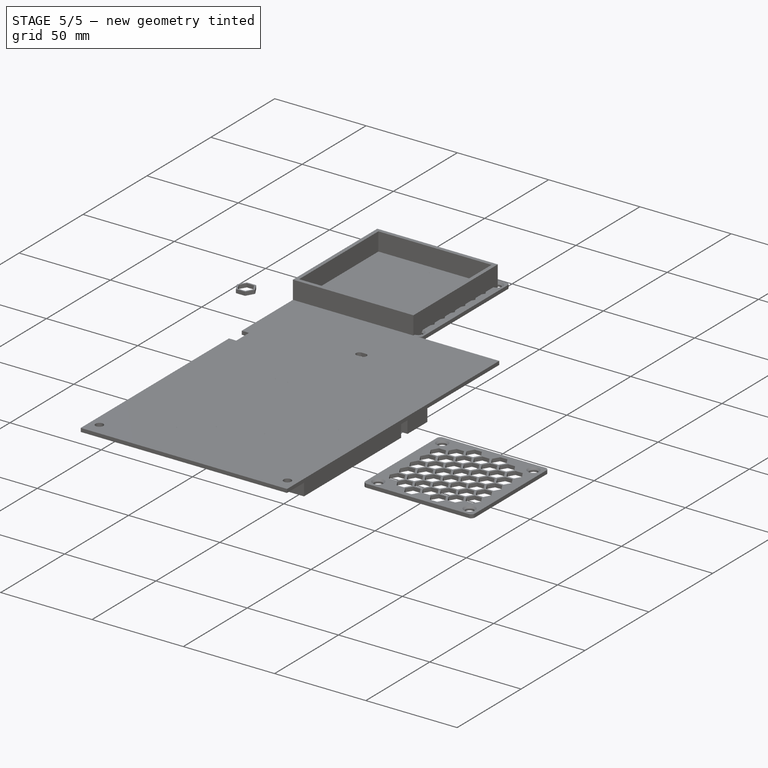
[diagram: stage 5 of 5 — iso view after this stage's code; geometry added in this stage tinted green]
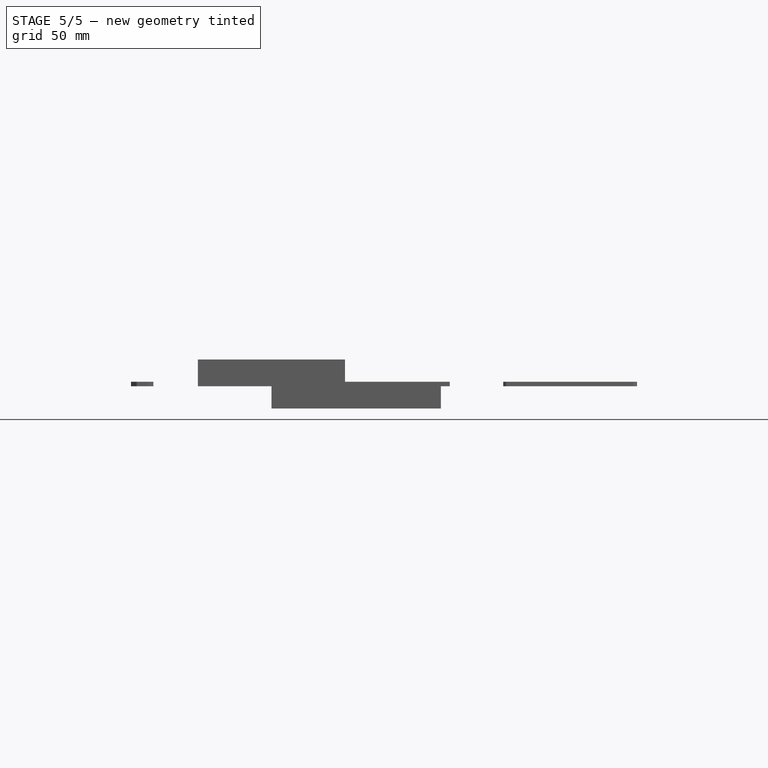
[diagram: stage 5 of 5 — front view after this stage's code; geometry added in this stage tinted green]
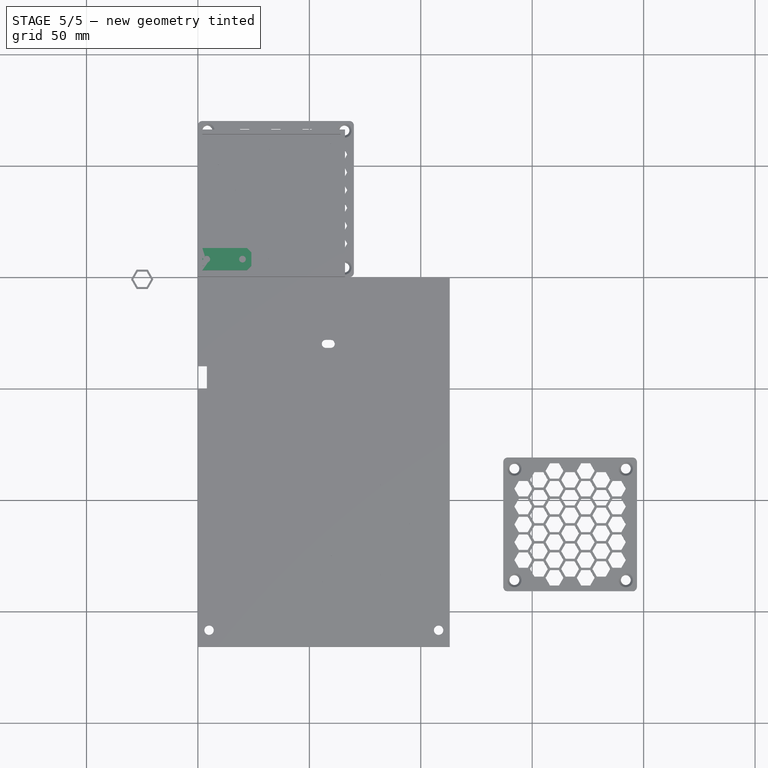
[diagram: stage 5 of 5 — top view after this stage's code; geometry added in this stage tinted green]
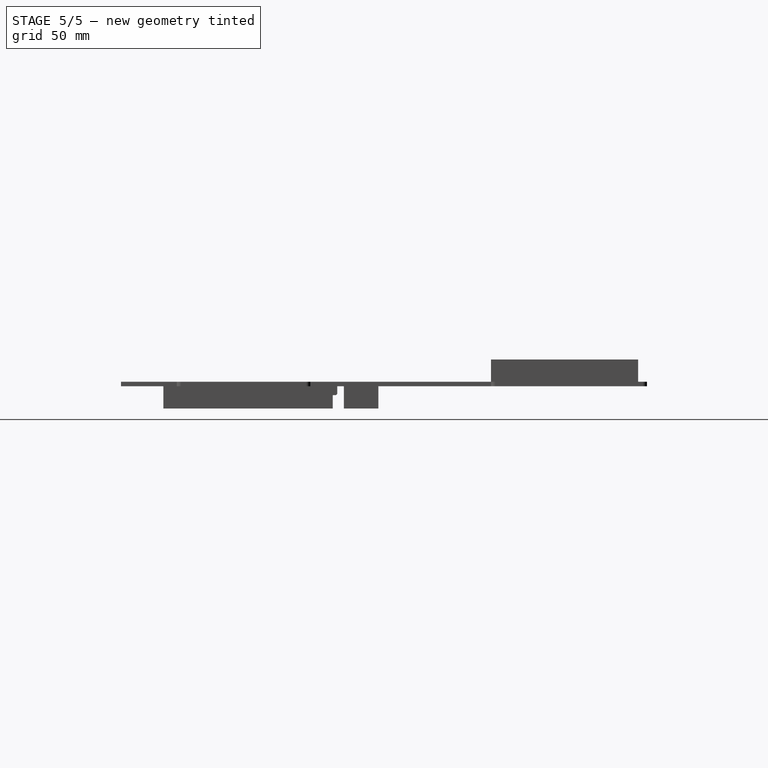
[diagram: stage 5 of 5 — right view after this stage's code; geometry added in this stage tinted green]
FEATURE [Part::Cylinder] Cylinder
  Angle = 360
  AttacherType = Attacher::AttachEngine3D
  Height = 10
  Placement = pos=(9,9,0) rot=(0,0,1;0rad)
  Radius = 2.2
FEATURE [Part::Cylinder] Cylinder010
  Angle = 360
  AttacherType = Attacher::AttachEngine3D
  Height = 10
  Placement = pos=(9,69,0) rot=(0,0,1;0rad)
  Radius = 2.2
FEATURE [Part::Cylinder] Cylinder011
  Angle = 360
  AttacherType = Attacher::AttachEngine3D
  Height = 10
  Placement = pos=(69,9,0) rot=(0,0,1;0rad)
  Radius = 2.2
FEATURE [Part::Feature] Body023
  shape: bbox 24 x 24 x 2 mm, 5 faces (baked)
FEATURE [Part::Feature] Body020001  label="Body024"
  Placement = pos=(-42,0,0) rot=(0,0,1;0rad)
  shape: bbox 24 x 24 x 2 mm, 5 faces (baked)
FEATURE [Part::Feature] Body022001  label="Body025"
  Placement = pos=(-18,-42,0) rot=(0,0,1;0rad)
  shape: bbox 24 x 24 x 2 mm, 5 faces (baked)
FEATURE [Part::Feature] Body021001  label="Body026"
  Placement = pos=(24,-18,0) rot=(0,0,1;0rad)
  shape: bbox 24 x 24 x 2 mm, 5 faces (baked)
FEATURE [Part::Box] Box006  label="Cube006"
  AttacherType = Attacher::AttachEngine3D
  Height = 10
  Length = 76
  Placement = pos=(1,1,0) rot=(0,0,1;0rad)
  Width = 76
FEATURE [Part::Box] Box007  label="Cube007"
  AttacherType = Attacher::AttachEngine3D
  Height = 10
  Length = 76
  Placement = pos=(1,1,2) rot=(0,0,1;0rad)
  Width = 76
FEATURE [Part::Box] Box008  label="Cube008"
  AttacherType = Attacher::AttachEngine3D
  Height = 10
  Length = 72
  Placement = pos=(3,3,2) rot=(0,0,1;0rad)
  Width = 72
FEATURE [Part::Cut] Cut005
  Base = -> Box007
  Tool = -> Box008
FEATURE [Part::Box] Box010  label="Cube010"
  AttacherType = Attacher::AttachEngine3D
  Height = 10
  Length = 11.5
  Width = 21
FEATURE [Part::Box] Box011  label="Cube011"
  AttacherType = Attacher::AttachEngine3D
  Height = 10
  Length = 15.5
  Placement = pos=(-2,-2,0) rot=(0,0,1;0rad)
  Width = 25
FEATURE [Part::Cut] Cut007
  Base = -> Box011
  Tool = -> Box010
FEATURE [Part::Box] Box012  label="Cube012"
  AttacherType = Attacher::AttachEngine3D
  Height = 10
  Length = 9.5
  Placement = pos=(1,-2,0) rot=(0,0,1;0rad)
  Width = 2
FEATURE [Part::Cut] Cut008
  Base = -> Cut007
  Tool = -> Box012
FEATURE [Part::Box] Box013  label="Cube013"
  AttacherType = Attacher::AttachEngine3D
  Height = 2
  Length = 15.5
  Placement = pos=(-2,7,6) rot=(0,0,1;0rad)
  Width = 3
FEATURE [Part::Cut] Cut009
  Base = -> Cut008
  Placement = pos=(86,-64,-5e-15) rot=(0.707107,0.707107,0;3.14159rad)
  Tool = -> Box013
FEATURE [Part::Chamfer] Chamfer
  Base = -> Cut009
  Edges = 2 edges r=1: [Edge8,Edge46]
FEATURE [Part::Box] Box014  label="Cube014"
  AttacherType = Attacher::AttachEngine3D
  Height = 8
  Length = 10
  Placement = pos=(53,-81,-8) rot=(0,0,1;0rad)
  Width = 10
FEATURE [Part::Box] Box015  label="Cube015"
  AttacherType = Attacher::AttachEngine3D
  Height = 3
  Length = 24
  Width = 10
FEATURE [Part::Box] Box016  label="Cube016"
  AttacherType = Attacher::AttachEngine3D
  Height = 1
  Length = 10
  Placement = pos=(7,0,0) rot=(0,0,1;0rad)
  Width = 10
FEATURE [Part::Cylinder] Cylinder013
  Angle = 360
  AttacherType = Attacher::AttachEngine3D
  Height = 3
  Placement = pos=(4,5,0) rot=(0,0,1;0rad)
  Radius = 1.5
FEATURE [Part::Cylinder] Cylinder014
  Angle = 360
  AttacherType = Attacher::AttachEngine3D
  Height = 3
  Placement = pos=(20,5,0) rot=(0,0,1;0rad)
  Radius = 1.5
FEATURE [Part::Cut] Cut011
  Base = -> Box015
  Tool = -> Box016
FEATURE [Part::MultiFuse] Fusion001002013
  Shapes = -> [Cylinder014,Cylinder013]
FEATURE [Part::Cut] Cut012
  Base = -> Cut011
  Placement = pos=(0,3,0) rot=(0,0,1;0rad)
  Tool = -> Fusion001002013
FEATURE [Part::Chamfer] Chamfer001
  Base = -> Cut012
  Edges = 4 edges r=2: [Edge1,Edge3,Edge10,Edge21]
FEATURE [Part::MultiFuse] Fusion
  Shapes = -> [Cylinder,Cylinder011,Cylinder012,Cylinder010]
FEATURE [Part::Cut] Cut013
  Base = -> Fusion001002016
  Tool = -> Fusion
FEATURE [Part::MultiCommon] Common
  Shapes = -> [Box006,Cut013]
FEATURE [Part::MultiFuse] Fusion001002017
  Placement = pos=(32,-148,-10) rot=(0,0,1;0rad)
  Shapes = -> [Common,Cut005]
FEATURE [Part::Cut] Cut014
  Base = -> Fusion001002017
  Tool = -> Box014
FEATURE [Part::MultiFuse] Fusion001002018
  Shapes = -> [Cut015,Chamfer,Cut014]
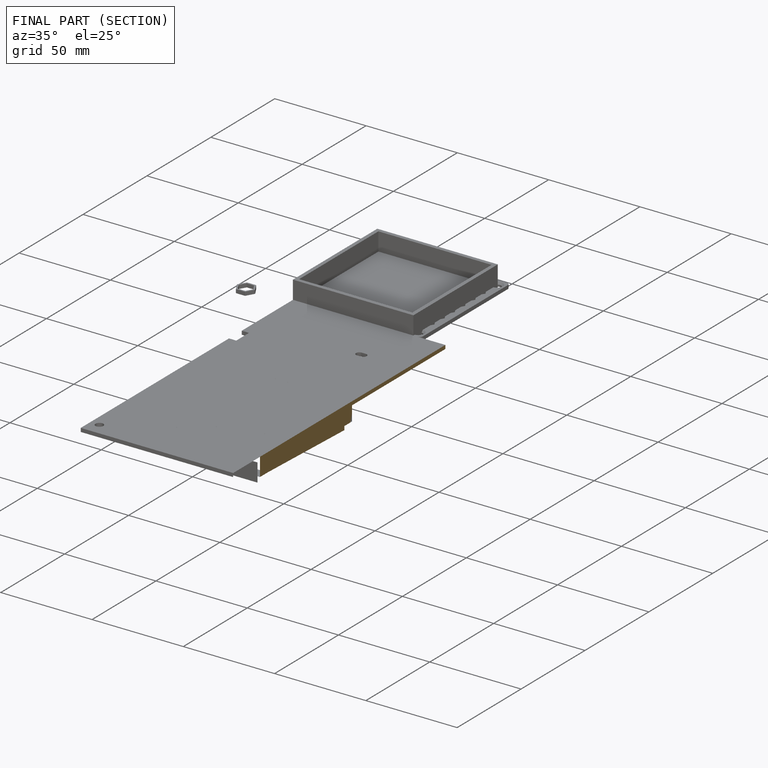
[diagram: finished part — half-section view (interior)]
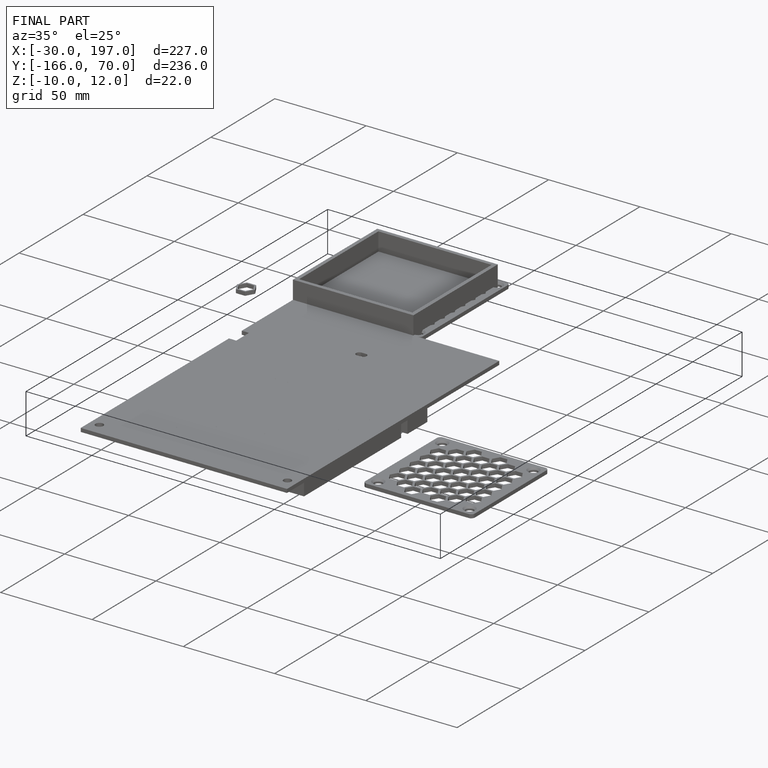
[diagram: finished part — iso view with bounding-box wireframe]
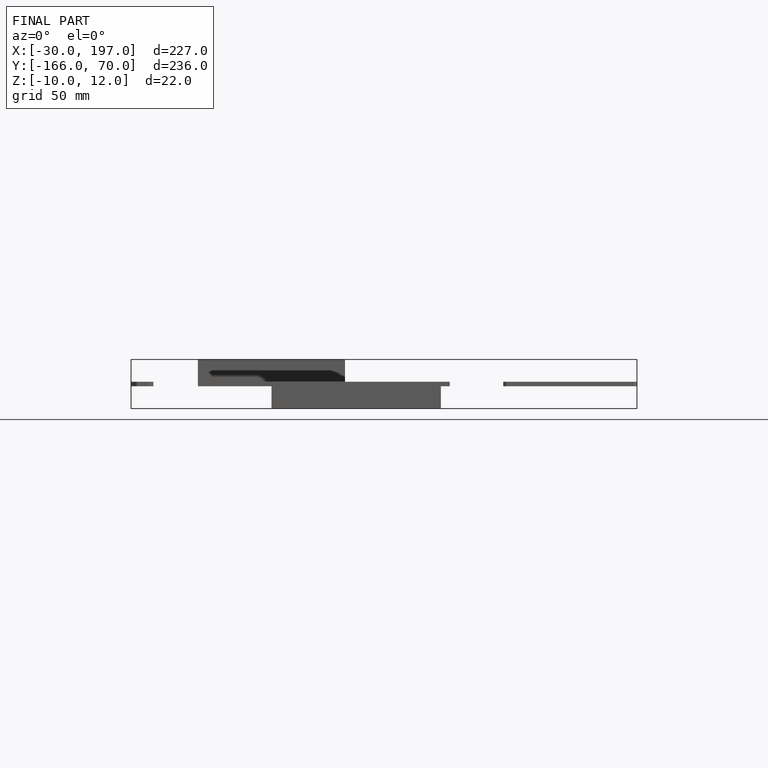
[diagram: finished part — front view with bounding-box wireframe]
